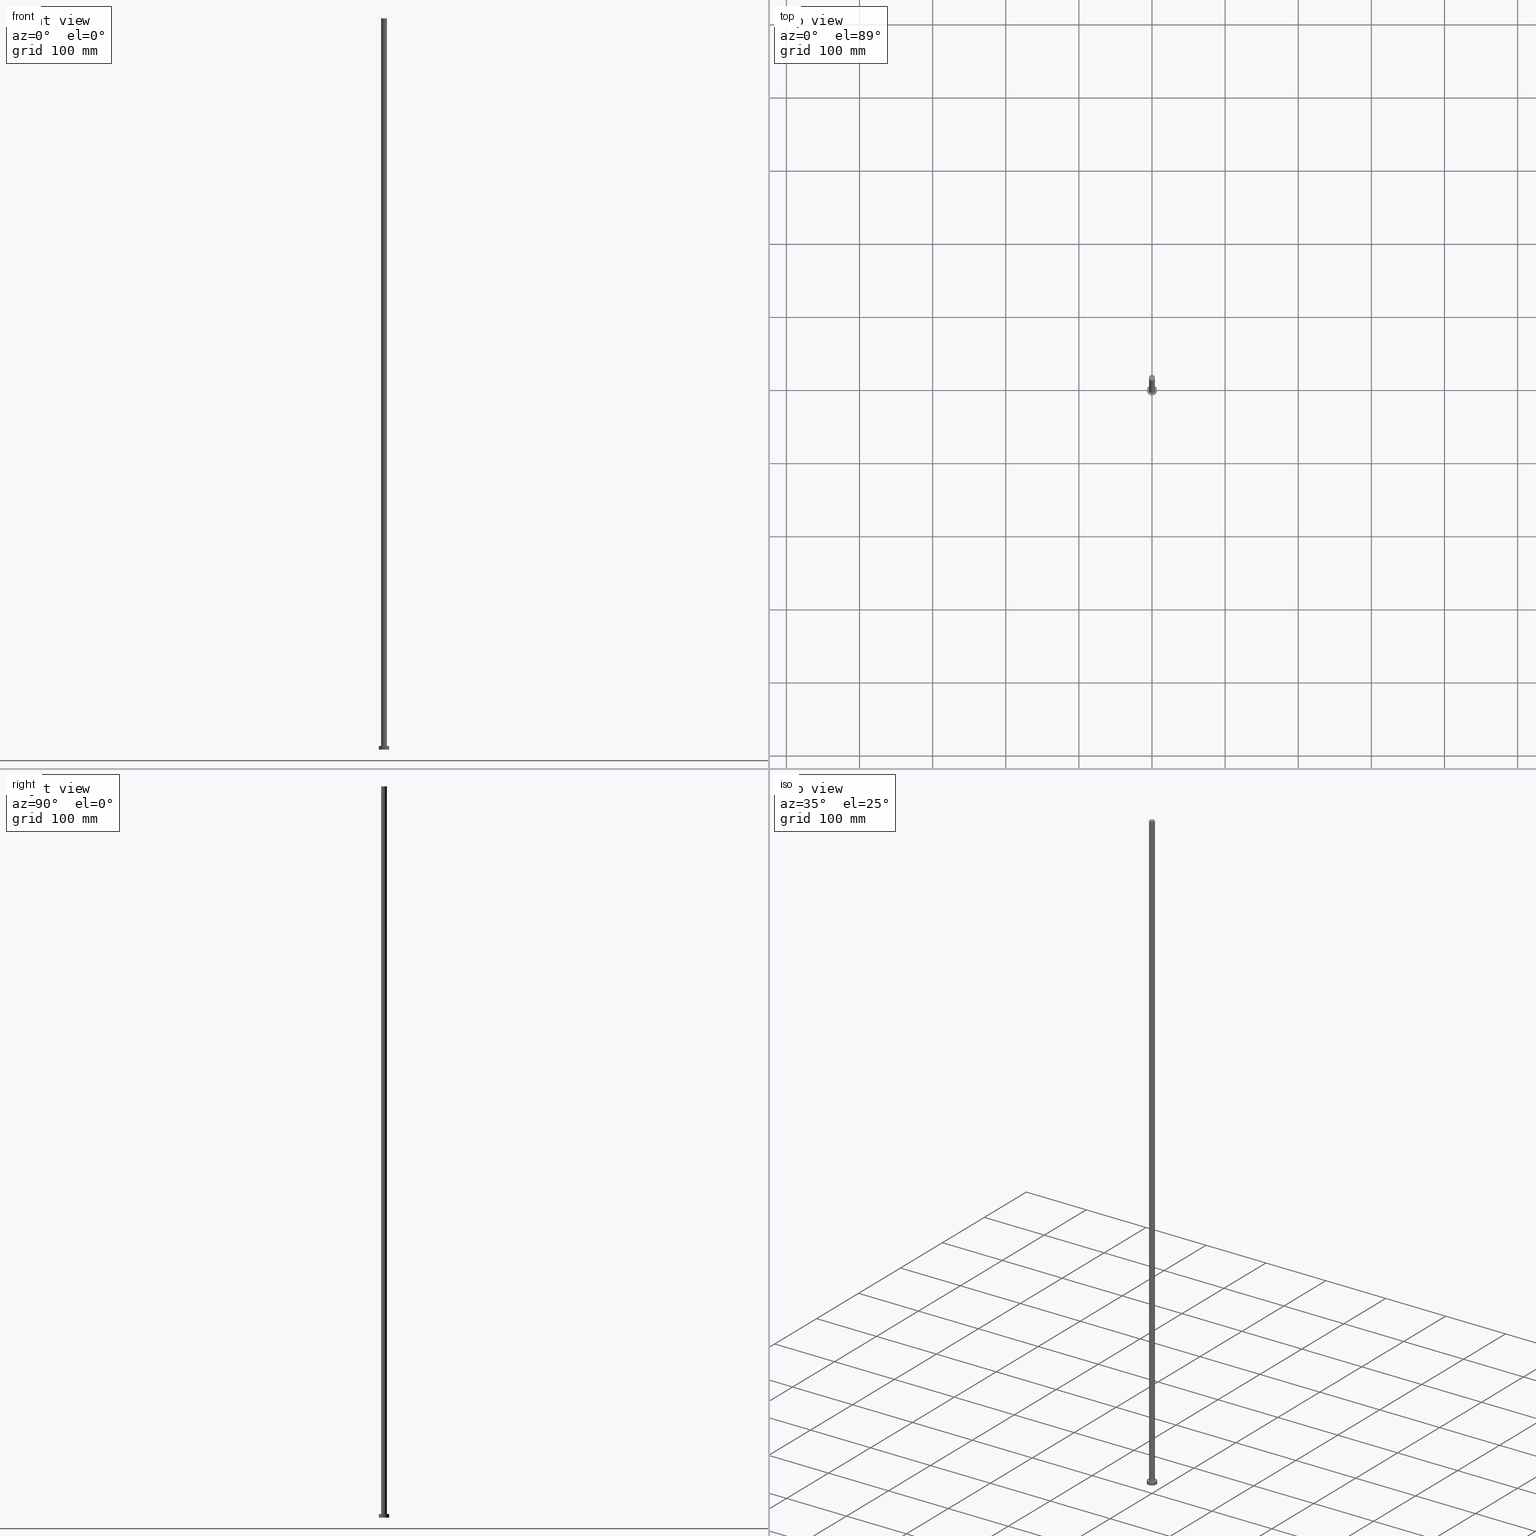
[diagram: canonical four-view strip — front | top / right | iso, engineering-drawing reading convention]
A machine part, canonical four-view strip (front | top / right | iso — engineering-drawing reading convention). The complete STEP part file that produces these views, byte-faithful:
ISO-10303-21;
HEADER;
FILE_DESCRIPTION (( 'STEP AP203' ),
    '1' );
FILE_NAME ('1fd3.STEP',
    '2023-02-12T11:47:26',
    ( '' ),
    ( '' ),
    'SwSTEP 2.0',
    'SolidWorks 2019',
    '' );
FILE_SCHEMA (( 'CONFIG_CONTROL_DESIGN' ));
ENDSEC;

DATA;
#1 = PLANE ( 'NONE',  #165 ) ;
#2 = ADVANCED_BREP_SHAPE_REPRESENTATION ( '1fd3', ( #195, #34 ), #215 ) ;
#3 = DIRECTION ( 'NONE',  ( 0.000000000000000000, 0.000000000000000000, 1.000000000000000000 ) ) ;
#4 = CARTESIAN_POINT ( 'NONE',  ( -4.000000000000000000, 0.000000000000000000, 1000.000000000000000 ) ) ;
#5 =( NAMED_UNIT ( * ) SI_UNIT ( $, .STERADIAN. ) SOLID_ANGLE_UNIT ( ) );
#6 = PERSON_AND_ORGANIZATION_ROLE ( 'design_owner' ) ;
#7 = LOCAL_TIME ( 12, 47, 26.00000000000000000, #10 ) ;
#8 = CALENDAR_DATE ( 2023, 12, 2 ) ;
#9 = EDGE_LOOP ( 'NONE', ( #168, #248 ) ) ;
#10 = COORDINATED_UNIVERSAL_TIME_OFFSET ( 1, 0, .AHEAD. ) ;
#11 =( NAMED_UNIT ( * ) PLANE_ANGLE_UNIT ( ) SI_UNIT ( $, .RADIAN. ) );
#12 = EDGE_LOOP ( 'NONE', ( #79, #113, #206, #52 ) ) ;
#13 = PRODUCT ( '1fd3', '1fd3', '', ( #65 ) ) ;
#14 = EDGE_CURVE ( 'NONE', #143, #208, #157, .T. ) ;
#15 = CALENDAR_DATE ( 2023, 12, 2 ) ;
#16 = PERSON ( 'NEUR�EN�', 'NEUR�EN�', 'NEUR�EN�', ('NEUR�EN�'), ('NEUR�EN�'), ('NEUR�EN�') ) ;
#17 = LINE ( 'NONE', #237, #87 ) ;
#18 = CARTESIAN_POINT ( 'NONE',  ( 4.000000000000000000, 4.898587196589411843E-16, 1000.000000000000000 ) ) ;
#19 = APPROVAL_PERSON_ORGANIZATION ( #78, #247, #204 ) ;
#20 = CARTESIAN_POINT ( 'NONE',  ( 0.000000000000000000, 0.000000000000000000, 5.000000000000000000 ) ) ;
#21 = EDGE_CURVE ( 'NONE', #81, #250, #178, .T. ) ;
#22 = CARTESIAN_POINT ( 'NONE',  ( 0.000000000000000000, 0.000000000000000000, 1000.000000000000000 ) ) ;
#23 = DIRECTION ( 'NONE',  ( 0.000000000000000000, 0.000000000000000000, 1.000000000000000000 ) ) ;
#24 = CIRCLE ( 'NONE', #224, 7.000000000000000000 ) ;
#25 = APPLICATION_PROTOCOL_DEFINITION ( 'international standard', 'config_control_design', 1994, #217 ) ;
#26 = ADVANCED_FACE ( 'NONE', ( #91 ), #55, .F. ) ;
#27 = DIRECTION ( 'NONE',  ( 0.000000000000000000, 0.000000000000000000, 1.000000000000000000 ) ) ;
#28 = CALENDAR_DATE ( 2023, 12, 2 ) ;
#29 = CARTESIAN_POINT ( 'NONE',  ( 0.000000000000000000, 0.000000000000000000, 5.000000000000000000 ) ) ;
#30 = ORIENTED_EDGE ( 'NONE', *, *, #50, .T. ) ;
#31 = PERSON_AND_ORGANIZATION ( #16, #98 ) ;
#32 = ORIENTED_EDGE ( 'NONE', *, *, #14, .T. ) ;
#33 = PERSON_AND_ORGANIZATION ( #16, #98 ) ;
#34 = AXIS2_PLACEMENT_3D ( 'NONE', #139, #119, #202 ) ;
#35 = EDGE_CURVE ( 'NONE', #189, #250, #17, .T. ) ;
#36 = ORIENTED_EDGE ( 'NONE', *, *, #67, .F. ) ;
#37 = CYLINDRICAL_SURFACE ( 'NONE', #234, 4.000000000000000000 ) ;
#38 = CARTESIAN_POINT ( 'NONE',  ( -7.000000000000000000, 0.000000000000000000, 5.000000000000000000 ) ) ;
#39 = VECTOR ( 'NONE', #106, 1000.000000000000000 ) ;
#40 = DIRECTION ( 'NONE',  ( 0.000000000000000000, 0.000000000000000000, 1.000000000000000000 ) ) ;
#41 = FACE_OUTER_BOUND ( 'NONE', #82, .T. ) ;
#42 = ADVANCED_FACE ( 'NONE', ( #200 ), #75, .T. ) ;
#43 = CARTESIAN_POINT ( 'NONE',  ( -7.000000000000000000, 0.000000000000000000, 5.000000000000000000 ) ) ;
#44 = VECTOR ( 'NONE', #255, 1000.000000000000000 ) ;
#45 = DIRECTION ( 'NONE',  ( -1.000000000000000000, 0.000000000000000000, 0.000000000000000000 ) ) ;
#46 = FACE_OUTER_BOUND ( 'NONE', #163, .T. ) ;
#47 = VERTEX_POINT ( 'NONE', #4 ) ;
#48 = AXIS2_PLACEMENT_3D ( 'NONE', #29, #61, #45 ) ;
#49 = CARTESIAN_POINT ( 'NONE',  ( 0.000000000000000000, 0.000000000000000000, 5.000000000000000000 ) ) ;
#50 = EDGE_CURVE ( 'NONE', #47, #143, #63, .T. ) ;
#51 = PERSON_AND_ORGANIZATION ( #16, #98 ) ;
#52 = ORIENTED_EDGE ( 'NONE', *, *, #235, .T. ) ;
#53 = CARTESIAN_POINT ( 'NONE',  ( 0.000000000000000000, 0.000000000000000000, 1000.000000000000000 ) ) ;
#54 = FACE_OUTER_BOUND ( 'NONE', #105, .T. ) ;
#55 = PLANE ( 'NONE',  #214 ) ;
#56 = LOCAL_TIME ( 12, 47, 26.00000000000000000, #108 ) ;
#57 = DIRECTION ( 'NONE',  ( -1.000000000000000000, 0.000000000000000000, 0.000000000000000000 ) ) ;
#58 = DIRECTION ( 'NONE',  ( 1.000000000000000000, 0.000000000000000000, 0.000000000000000000 ) ) ;
#59 = LOCAL_TIME ( 12, 47, 26.00000000000000000, #104 ) ;
#60 = CYLINDRICAL_SURFACE ( 'NONE', #48, 7.000000000000000000 ) ;
#61 = DIRECTION ( 'NONE',  ( -0.000000000000000000, -0.000000000000000000, -1.000000000000000000 ) ) ;
#62 = ORIENTED_EDGE ( 'NONE', *, *, #94, .F. ) ;
#63 = CIRCLE ( 'NONE', #153, 4.000000000000000000 ) ;
#64 = AXIS2_PLACEMENT_3D ( 'NONE', #49, #27, #244 ) ;
#65 = MECHANICAL_CONTEXT ( 'NONE', #252, 'mechanical' ) ;
#66 = ORIENTED_EDGE ( 'NONE', *, *, #21, .F. ) ;
#67 = EDGE_CURVE ( 'NONE', #208, #147, #193, .T. ) ;
#68 = EDGE_LOOP ( 'NONE', ( #166, #36 ) ) ;
#69 = SHAPE_DEFINITION_REPRESENTATION ( #230, #2 ) ;
#70 = DIRECTION ( 'NONE',  ( 1.000000000000000000, 0.000000000000000000, 0.000000000000000000 ) ) ;
#71 = CC_DESIGN_PERSON_AND_ORGANIZATION_ASSIGNMENT ( #51, #231, ( #243 ) ) ;
#72 = CARTESIAN_POINT ( 'NONE',  ( 0.000000000000000000, 0.000000000000000000, 5.000000000000000000 ) ) ;
#73 = DIRECTION ( 'NONE',  ( 1.000000000000000000, 0.000000000000000000, -0.000000000000000000 ) ) ;
#74 = CARTESIAN_POINT ( 'NONE',  ( 0.000000000000000000, 0.000000000000000000, 1000.000000000000000 ) ) ;
#75 = CYLINDRICAL_SURFACE ( 'NONE', #103, 7.000000000000000000 ) ;
#76 = CC_DESIGN_APPROVAL ( #242, ( #243 ) ) ;
#77 = CLOSED_SHELL ( 'NONE', ( #184, #251, #42, #101, #26, #112, #120 ) ) ;
#78 = PERSON_AND_ORGANIZATION ( #16, #98 ) ;
#79 = ORIENTED_EDGE ( 'NONE', *, *, #14, .F. ) ;
#80 = DATE_AND_TIME ( #28, #174 ) ;
#81 = VERTEX_POINT ( 'NONE', #238 ) ;
#82 = EDGE_LOOP ( 'NONE', ( #233, #32, #226, #187 ) ) ;
#83 = AXIS2_PLACEMENT_3D ( 'NONE', #221, #40, #114 ) ;
#84 = DATE_AND_TIME ( #253, #56 ) ;
#85 = ORIENTED_EDGE ( 'NONE', *, *, #203, .F. ) ;
#86 = EDGE_CURVE ( 'NONE', #107, #81, #176, .T. ) ;
#87 = VECTOR ( 'NONE', #194, 1000.000000000000000 ) ;
#88 = APPROVAL_DATE_TIME ( #185, #247 ) ;
#89 = CARTESIAN_POINT ( 'NONE',  ( 0.000000000000000000, 0.000000000000000000, 0.000000000000000000 ) ) ;
#90 = CC_DESIGN_DATE_AND_TIME_ASSIGNMENT ( #84, #170, ( #243 ) ) ;
#91 = FACE_OUTER_BOUND ( 'NONE', #126, .T. ) ;
#92 = PRODUCT_DEFINITION_FORMATION_WITH_SPECIFIED_SOURCE ( 'LIBOVOLN�', '', #13, .NOT_KNOWN. ) ;
#93 = DIRECTION ( 'NONE',  ( 0.000000000000000000, 0.000000000000000000, 1.000000000000000000 ) ) ;
#94 = EDGE_CURVE ( 'NONE', #189, #107, #24, .T. ) ;
#95 = DIRECTION ( 'NONE',  ( -1.000000000000000000, 0.000000000000000000, 0.000000000000000000 ) ) ;
#96 = FACE_OUTER_BOUND ( 'NONE', #9, .T. ) ;
#97 = VECTOR ( 'NONE', #196, 1000.000000000000000 ) ;
#98 = ORGANIZATION ( 'NEUR�EN�', 'NEUR�EN�', '' ) ;
#99 = PERSON_AND_ORGANIZATION_ROLE ( 'creator' ) ;
#100 = PERSON_AND_ORGANIZATION ( #16, #98 ) ;
#101 = ADVANCED_FACE ( 'NONE', ( #156, #96 ), #1, .T. ) ;
#102 = APPROVAL_DATE_TIME ( #80, #227 ) ;
#103 = AXIS2_PLACEMENT_3D ( 'NONE', #134, #236, #179 ) ;
#104 = COORDINATED_UNIVERSAL_TIME_OFFSET ( 1, 0, .AHEAD. ) ;
#105 = EDGE_LOOP ( 'NONE', ( #30, #249 ) ) ;
#106 = DIRECTION ( 'NONE',  ( -0.000000000000000000, -0.000000000000000000, -1.000000000000000000 ) ) ;
#107 = VERTEX_POINT ( 'NONE', #43 ) ;
#108 = COORDINATED_UNIVERSAL_TIME_OFFSET ( 1, 0, .AHEAD. ) ;
#109 = COORDINATED_UNIVERSAL_TIME_OFFSET ( 1, 0, .AHEAD. ) ;
#110 = PERSON_AND_ORGANIZATION_ROLE ( 'design_supplier' ) ;
#111 = AXIS2_PLACEMENT_3D ( 'NONE', #182, #160, #186 ) ;
#112 = ADVANCED_FACE ( 'NONE', ( #197 ), #37, .T. ) ;
#113 = ORIENTED_EDGE ( 'NONE', *, *, #50, .F. ) ;
#114 = DIRECTION ( 'NONE',  ( 1.000000000000000000, 0.000000000000000000, -0.000000000000000000 ) ) ;
#115 = PLANE ( 'NONE',  #83 ) ;
#116 = CARTESIAN_POINT ( 'NONE',  ( 0.000000000000000000, 0.000000000000000000, 5.000000000000000000 ) ) ;
#117 = DIRECTION ( 'NONE',  ( 1.000000000000000000, 0.000000000000000000, -0.000000000000000000 ) ) ;
#118 = CARTESIAN_POINT ( 'NONE',  ( 4.000000000000000000, 4.898587196589411843E-16, 5.000000000000000000 ) ) ;
#119 = DIRECTION ( 'NONE',  ( 0.000000000000000000, 0.000000000000000000, 1.000000000000000000 ) ) ;
#120 = ADVANCED_FACE ( 'NONE', ( #54 ), #115, .T. ) ;
#121 =( LENGTH_UNIT ( ) NAMED_UNIT ( * ) SI_UNIT ( .MILLI., .METRE. ) );
#122 = APPROVAL_STATUS ( 'not_yet_approved' ) ;
#123 = CC_DESIGN_DATE_AND_TIME_ASSIGNMENT ( #162, #225, ( #171 ) ) ;
#124 = ORIENTED_EDGE ( 'NONE', *, *, #86, .F. ) ;
#125 = PERSON_AND_ORGANIZATION_ROLE ( 'creator' ) ;
#126 = EDGE_LOOP ( 'NONE', ( #66, #85 ) ) ;
#127 = EDGE_CURVE ( 'NONE', #107, #189, #210, .T. ) ;
#128 = EDGE_CURVE ( 'NONE', #143, #47, #149, .T. ) ;
#129 = AXIS2_PLACEMENT_3D ( 'NONE', #132, #218, #70 ) ;
#130 = CC_DESIGN_APPROVAL ( #247, ( #92 ) ) ;
#131 = ORIENTED_EDGE ( 'NONE', *, *, #21, .T. ) ;
#132 = CARTESIAN_POINT ( 'NONE',  ( 0.000000000000000000, 0.000000000000000000, 5.000000000000000000 ) ) ;
#133 = DIRECTION ( 'NONE',  ( -0.000000000000000000, -0.000000000000000000, -1.000000000000000000 ) ) ;
#134 = CARTESIAN_POINT ( 'NONE',  ( 0.000000000000000000, 0.000000000000000000, 5.000000000000000000 ) ) ;
#135 = APPROVAL_PERSON_ORGANIZATION ( #141, #227, #228 ) ;
#136 = DIRECTION ( 'NONE',  ( 1.000000000000000000, 0.000000000000000000, 0.000000000000000000 ) ) ;
#137 = EDGE_LOOP ( 'NONE', ( #145, #192, #152, #131 ) ) ;
#138 = CC_DESIGN_PERSON_AND_ORGANIZATION_ASSIGNMENT ( #183, #99, ( #171 ) ) ;
#139 = CARTESIAN_POINT ( 'NONE',  ( 0.000000000000000000, 0.000000000000000000, 0.000000000000000000 ) ) ;
#140 = CIRCLE ( 'NONE', #64, 4.000000000000000000 ) ;
#141 = PERSON_AND_ORGANIZATION ( #16, #98 ) ;
#142 = APPLICATION_PROTOCOL_DEFINITION ( 'international standard', 'config_control_design', 1994, #252 ) ;
#143 = VERTEX_POINT ( 'NONE', #18 ) ;
#144 = AXIS2_PLACEMENT_3D ( 'NONE', #116, #198, #58 ) ;
#145 = ORIENTED_EDGE ( 'NONE', *, *, #35, .F. ) ;
#146 = DATE_AND_TIME ( #15, #161 ) ;
#147 = VERTEX_POINT ( 'NONE', #173 ) ;
#148 = CC_DESIGN_PERSON_AND_ORGANIZATION_ASSIGNMENT ( #100, #6, ( #13 ) ) ;
#149 = CIRCLE ( 'NONE', #190, 4.000000000000000000 ) ;
#150 = APPROVAL_DATE_TIME ( #146, #242 ) ;
#151 = PRODUCT_RELATED_PRODUCT_CATEGORY ( 'detail', '', ( #13 ) ) ;
#152 = ORIENTED_EDGE ( 'NONE', *, *, #86, .T. ) ;
#153 = AXIS2_PLACEMENT_3D ( 'NONE', #53, #93, #175 ) ;
#154 = CARTESIAN_POINT ( 'NONE',  ( 0.000000000000000000, 0.000000000000000000, 0.000000000000000000 ) ) ;
#155 = DIRECTION ( 'NONE',  ( 0.000000000000000000, 0.000000000000000000, 1.000000000000000000 ) ) ;
#156 = FACE_BOUND ( 'NONE', #68, .T. ) ;
#157 = LINE ( 'NONE', #223, #97 ) ;
#158 = DIRECTION ( 'NONE',  ( 0.000000000000000000, 0.000000000000000000, 1.000000000000000000 ) ) ;
#159 = LINE ( 'NONE', #164, #39 ) ;
#160 = DIRECTION ( 'NONE',  ( 0.000000000000000000, 0.000000000000000000, 1.000000000000000000 ) ) ;
#161 = LOCAL_TIME ( 12, 47, 26.00000000000000000, #109 ) ;
#162 = DATE_AND_TIME ( #8, #7 ) ;
#163 = EDGE_LOOP ( 'NONE', ( #62, #216, #229, #124 ) ) ;
#164 = CARTESIAN_POINT ( 'NONE',  ( -4.000000000000000000, 0.000000000000000000, 1000.000000000000000 ) ) ;
#165 = AXIS2_PLACEMENT_3D ( 'NONE', #72, #155, #117 ) ;
#166 = ORIENTED_EDGE ( 'NONE', *, *, #235, .F. ) ;
#167 = CC_DESIGN_APPROVAL ( #227, ( #171 ) ) ;
#168 = ORIENTED_EDGE ( 'NONE', *, *, #127, .T. ) ;
#169 = AXIS2_PLACEMENT_3D ( 'NONE', #74, #240, #57 ) ;
#170 = DATE_TIME_ROLE ( 'classification_date' ) ;
#171 = PRODUCT_DEFINITION ( 'NEZN�M�', '', #92, #239 ) ;
#172 = APPROVAL_ROLE ( '' ) ;
#173 = CARTESIAN_POINT ( 'NONE',  ( -4.000000000000000000, 0.000000000000000000, 5.000000000000000000 ) ) ;
#174 = LOCAL_TIME ( 12, 47, 26.00000000000000000, #201 ) ;
#175 = DIRECTION ( 'NONE',  ( 1.000000000000000000, 0.000000000000000000, 0.000000000000000000 ) ) ;
#176 = LINE ( 'NONE', #38, #44 ) ;
#177 = DIRECTION ( 'NONE',  ( 1.000000000000000000, 0.000000000000000000, 0.000000000000000000 ) ) ;
#178 = CIRCLE ( 'NONE', #205, 7.000000000000000000 ) ;
#179 = DIRECTION ( 'NONE',  ( -1.000000000000000000, 0.000000000000000000, 0.000000000000000000 ) ) ;
#180 = CIRCLE ( 'NONE', #111, 7.000000000000000000 ) ;
#181 = CARTESIAN_POINT ( 'NONE',  ( 7.000000000000000000, 8.572527594031473190E-16, 5.000000000000000000 ) ) ;
#182 = CARTESIAN_POINT ( 'NONE',  ( 0.000000000000000000, 0.000000000000000000, 0.000000000000000000 ) ) ;
#183 = PERSON_AND_ORGANIZATION ( #16, #98 ) ;
#184 = ADVANCED_FACE ( 'NONE', ( #41 ), #254, .T. ) ;
#185 = DATE_AND_TIME ( #246, #59 ) ;
#186 = DIRECTION ( 'NONE',  ( 1.000000000000000000, 0.000000000000000000, 0.000000000000000000 ) ) ;
#187 = ORIENTED_EDGE ( 'NONE', *, *, #213, .F. ) ;
#188 = CC_DESIGN_PERSON_AND_ORGANIZATION_ASSIGNMENT ( #33, #110, ( #92 ) ) ;
#189 = VERTEX_POINT ( 'NONE', #181 ) ;
#190 = AXIS2_PLACEMENT_3D ( 'NONE', #22, #23, #177 ) ;
#191 = SECURITY_CLASSIFICATION_LEVEL ( 'unclassified' ) ;
#192 = ORIENTED_EDGE ( 'NONE', *, *, #127, .F. ) ;
#193 = CIRCLE ( 'NONE', #129, 4.000000000000000000 ) ;
#194 = DIRECTION ( 'NONE',  ( -0.000000000000000000, -0.000000000000000000, -1.000000000000000000 ) ) ;
#195 = MANIFOLD_SOLID_BREP ( 'P�idat vysunut�m3', #77 ) ;
#196 = DIRECTION ( 'NONE',  ( -0.000000000000000000, -0.000000000000000000, -1.000000000000000000 ) ) ;
#197 = FACE_OUTER_BOUND ( 'NONE', #12, .T. ) ;
#198 = DIRECTION ( 'NONE',  ( 0.000000000000000000, 0.000000000000000000, 1.000000000000000000 ) ) ;
#199 = CC_DESIGN_PERSON_AND_ORGANIZATION_ASSIGNMENT ( #209, #125, ( #92 ) ) ;
#200 = FACE_OUTER_BOUND ( 'NONE', #137, .T. ) ;
#201 = COORDINATED_UNIVERSAL_TIME_OFFSET ( 1, 0, .AHEAD. ) ;
#202 = DIRECTION ( 'NONE',  ( 1.000000000000000000, 0.000000000000000000, 0.000000000000000000 ) ) ;
#203 = EDGE_CURVE ( 'NONE', #250, #81, #180, .T. ) ;
#204 = APPROVAL_ROLE ( '' ) ;
#205 = AXIS2_PLACEMENT_3D ( 'NONE', #154, #3, #136 ) ;
#206 = ORIENTED_EDGE ( 'NONE', *, *, #213, .T. ) ;
#207 = CARTESIAN_POINT ( 'NONE',  ( 7.000000000000000000, 8.572527594031473190E-16, 0.000000000000000000 ) ) ;
#208 = VERTEX_POINT ( 'NONE', #118 ) ;
#209 = PERSON_AND_ORGANIZATION ( #16, #98 ) ;
#210 = CIRCLE ( 'NONE', #144, 7.000000000000000000 ) ;
#211 = APPROVAL_PERSON_ORGANIZATION ( #31, #242, #172 ) ;
#212 = APPROVAL_STATUS ( 'not_yet_approved' ) ;
#213 = EDGE_CURVE ( 'NONE', #47, #147, #159, .T. ) ;
#214 = AXIS2_PLACEMENT_3D ( 'NONE', #89, #219, #73 ) ;
#215 =( GEOMETRIC_REPRESENTATION_CONTEXT ( 3 ) GLOBAL_UNCERTAINTY_ASSIGNED_CONTEXT ( ( #220 ) ) GLOBAL_UNIT_ASSIGNED_CONTEXT ( ( #121, #11, #5 ) ) REPRESENTATION_CONTEXT ( 'NONE', 'WORKASPACE' ) );
#216 = ORIENTED_EDGE ( 'NONE', *, *, #35, .T. ) ;
#217 = APPLICATION_CONTEXT ( 'configuration controlled 3d designs of mechanical parts and assemblies' ) ;
#218 = DIRECTION ( 'NONE',  ( 0.000000000000000000, 0.000000000000000000, 1.000000000000000000 ) ) ;
#219 = DIRECTION ( 'NONE',  ( 0.000000000000000000, 0.000000000000000000, 1.000000000000000000 ) ) ;
#220 = UNCERTAINTY_MEASURE_WITH_UNIT (LENGTH_MEASURE( 1.000000000000000082E-05 ), #121, 'distance_accuracy_value', 'NONE');
#221 = CARTESIAN_POINT ( 'NONE',  ( 0.000000000000000000, 0.000000000000000000, 1000.000000000000000 ) ) ;
#222 = DIRECTION ( 'NONE',  ( 1.000000000000000000, 0.000000000000000000, 0.000000000000000000 ) ) ;
#223 = CARTESIAN_POINT ( 'NONE',  ( 4.000000000000000000, 4.898587196589411843E-16, 1000.000000000000000 ) ) ;
#224 = AXIS2_PLACEMENT_3D ( 'NONE', #20, #158, #222 ) ;
#225 = DATE_TIME_ROLE ( 'creation_date' ) ;
#226 = ORIENTED_EDGE ( 'NONE', *, *, #67, .T. ) ;
#227 = APPROVAL ( #245, 'NEUR�EN�' ) ;
#228 = APPROVAL_ROLE ( '' ) ;
#229 = ORIENTED_EDGE ( 'NONE', *, *, #203, .T. ) ;
#230 = PRODUCT_DEFINITION_SHAPE ( 'NONE', 'NONE',  #171 ) ;
#231 = PERSON_AND_ORGANIZATION_ROLE ( 'classification_officer' ) ;
#232 = CC_DESIGN_SECURITY_CLASSIFICATION ( #243, ( #92 ) ) ;
#233 = ORIENTED_EDGE ( 'NONE', *, *, #128, .F. ) ;
#234 = AXIS2_PLACEMENT_3D ( 'NONE', #241, #133, #95 ) ;
#235 = EDGE_CURVE ( 'NONE', #147, #208, #140, .T. ) ;
#236 = DIRECTION ( 'NONE',  ( -0.000000000000000000, -0.000000000000000000, -1.000000000000000000 ) ) ;
#237 = CARTESIAN_POINT ( 'NONE',  ( 7.000000000000000000, 8.572527594031473190E-16, 5.000000000000000000 ) ) ;
#238 = CARTESIAN_POINT ( 'NONE',  ( -7.000000000000000000, 0.000000000000000000, 0.000000000000000000 ) ) ;
#239 = DESIGN_CONTEXT ( 'detailed design', #217, 'design' ) ;
#240 = DIRECTION ( 'NONE',  ( -0.000000000000000000, -0.000000000000000000, -1.000000000000000000 ) ) ;
#241 = CARTESIAN_POINT ( 'NONE',  ( 0.000000000000000000, 0.000000000000000000, 1000.000000000000000 ) ) ;
#242 = APPROVAL ( #212, 'NEUR�EN�' ) ;
#243 = SECURITY_CLASSIFICATION ( '', '', #191 ) ;
#244 = DIRECTION ( 'NONE',  ( 1.000000000000000000, 0.000000000000000000, 0.000000000000000000 ) ) ;
#245 = APPROVAL_STATUS ( 'not_yet_approved' ) ;
#246 = CALENDAR_DATE ( 2023, 12, 2 ) ;
#247 = APPROVAL ( #122, 'NEUR�EN�' ) ;
#248 = ORIENTED_EDGE ( 'NONE', *, *, #94, .T. ) ;
#249 = ORIENTED_EDGE ( 'NONE', *, *, #128, .T. ) ;
#250 = VERTEX_POINT ( 'NONE', #207 ) ;
#251 = ADVANCED_FACE ( 'NONE', ( #46 ), #60, .T. ) ;
#252 = APPLICATION_CONTEXT ( 'configuration controlled 3d designs of mechanical parts and assemblies' ) ;
#253 = CALENDAR_DATE ( 2023, 12, 2 ) ;
#254 = CYLINDRICAL_SURFACE ( 'NONE', #169, 4.000000000000000000 ) ;
#255 = DIRECTION ( 'NONE',  ( -0.000000000000000000, -0.000000000000000000, -1.000000000000000000 ) ) ;
ENDSEC;
END-ISO-10303-21;
